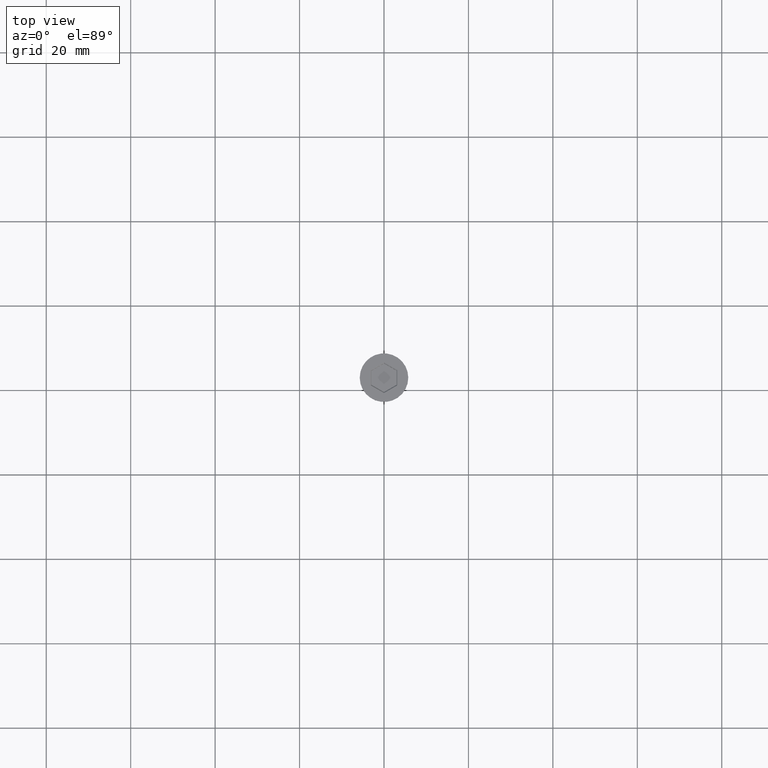
[diagram: clean part render]
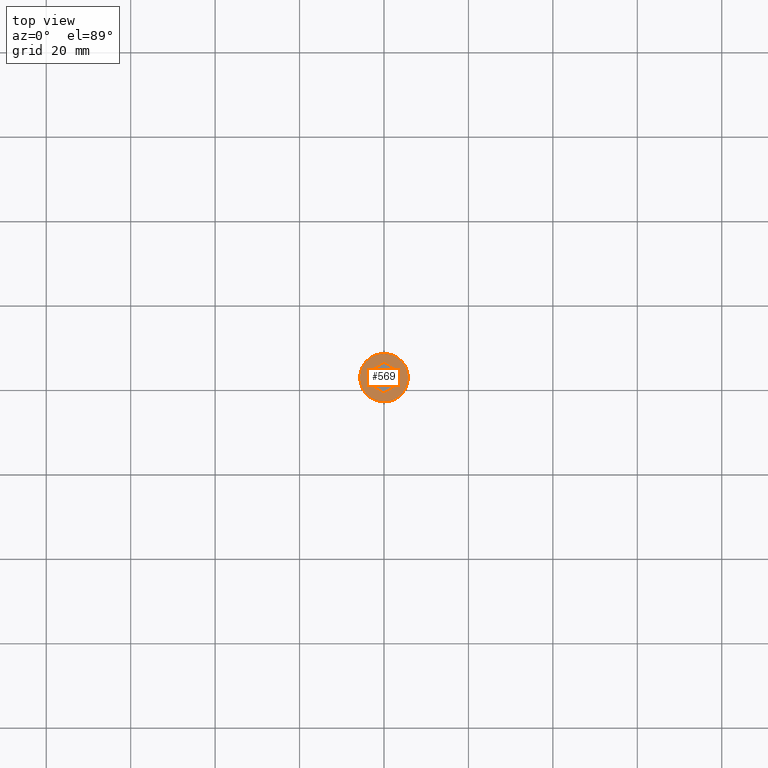
[diagram: same view with one face highlighted and labeled with its STEP entity id]
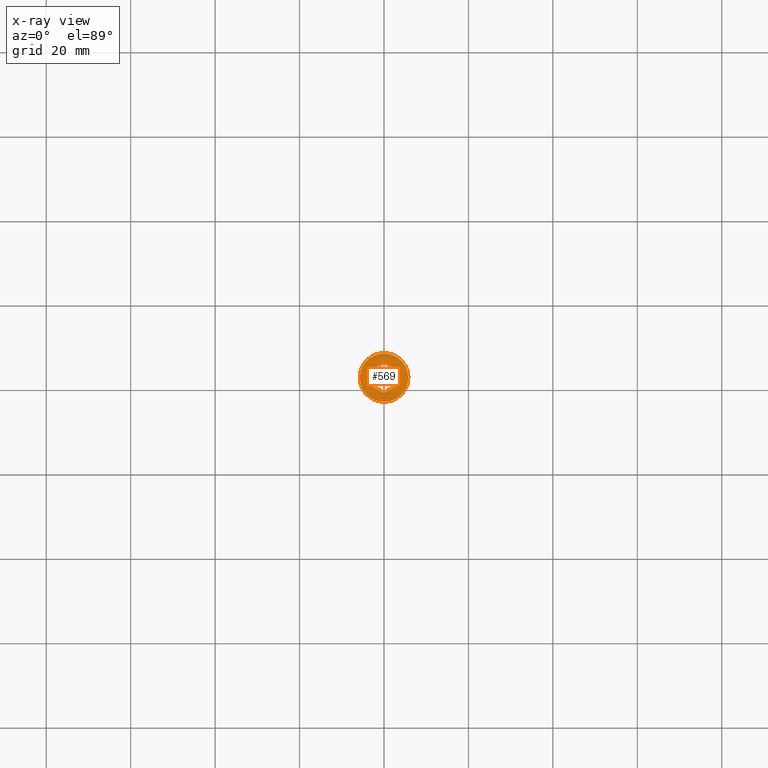
[diagram: x-ray of the same camera — body ghosted, the highlighted face saturated]
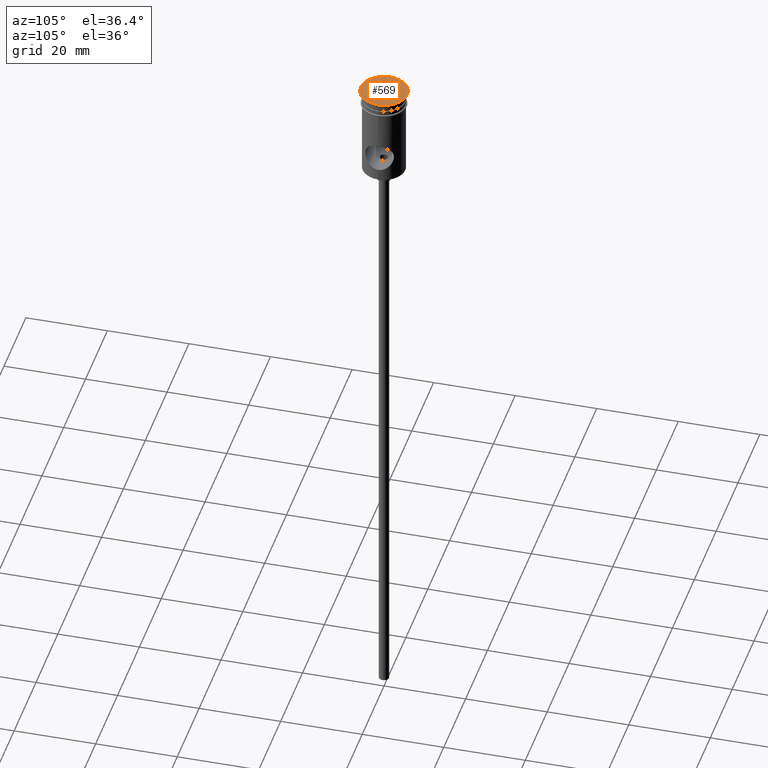
[diagram: same view with one face highlighted and labeled with its STEP entity id]
A machine part, top view. The second image highlights one B-rep face of the part: STEP entity #569.
The next image is the same camera in x-ray: the body ghosted, the highlighted face saturated — about 0% of this face is hidden behind the body in this view.
A second angle (auxiliary view) of the same face is appended — the face is thin or edge-on in the first view.
In plain terms, the highlighted planar face has unit normal (0, -0, 1).
Its self-contained STEP definition (entity closure, byte-faithful):
#3 = PLANE ( 'NONE',  #425 ) ;
#54 = VECTOR ( 'NONE', #727, 1000.000000000000114 ) ;
#78 = CARTESIAN_POINT ( 'NONE',  ( -3.163467028841980443E-16, 3.637306695894617192, 0.000000000000000000 ) ) ;
#112 = LINE ( 'NONE', #654, #376 ) ;
#132 = VERTEX_POINT ( 'NONE', #831 ) ;
#178 = EDGE_CURVE ( 'NONE', #1088, #759, #859, .T. ) ;
#225 = DIRECTION ( 'NONE',  ( 0.000000000000000000, 1.000000000000000000, 0.000000000000000000 ) ) ;
#229 = CARTESIAN_POINT ( 'NONE',  ( 0.000000000000000000, 0.000000000000000000, 0.000000000000000000 ) ) ;
#283 = LINE ( 'NONE', #760, #54 ) ;
#286 = CARTESIAN_POINT ( 'NONE',  ( 3.149999999999978151, -1.703183294109396284, 0.000000000000000000 ) ) ;
#338 = FACE_BOUND ( 'NONE', #1139, .T. ) ;
#341 = EDGE_CURVE ( 'NONE', #1023, #1303, #1173, .T. ) ;
#353 = VECTOR ( 'NONE', #824, 1000.000000000000000 ) ;
#356 = ORIENTED_EDGE ( 'NONE', *, *, #609, .T. ) ;
#376 = VECTOR ( 'NONE', #1336, 1000.000000000000000 ) ;
#383 = DIRECTION ( 'NONE',  ( -0.000000000000000000, -0.000000000000000000, 1.000000000000000000 ) ) ;
#391 = DIRECTION ( 'NONE',  ( 0.8660254037844385966, 0.5000000000000001110, 0.000000000000000000 ) ) ;
#395 = ORIENTED_EDGE ( 'NONE', *, *, #777, .T. ) ;
#411 = VERTEX_POINT ( 'NONE', #78 ) ;
#423 = VECTOR ( 'NONE', #225, 1000.000000000000000 ) ;
#425 = AXIS2_PLACEMENT_3D ( 'NONE', #229, #989, #768 ) ;
#431 = EDGE_LOOP ( 'NONE', ( #1327, #1334 ) ) ;
#492 = CARTESIAN_POINT ( 'NONE',  ( -5.257856505504653693E-16, -3.637306695894617636, 0.000000000000000000 ) ) ;
#569 = ADVANCED_FACE ( 'NONE', ( #338, #1098 ), #3, .T. ) ;
#580 = VERTEX_POINT ( 'NONE', #1011 ) ;
#587 = ORIENTED_EDGE ( 'NONE', *, *, #920, .T. ) ;
#606 = CARTESIAN_POINT ( 'NONE',  ( 5.750000000000000000, 0.000000000000000000, 0.000000000000000000 ) ) ;
#609 = EDGE_CURVE ( 'NONE', #411, #132, #112, .T. ) ;
#641 = VECTOR ( 'NONE', #391, 1000.000000000000114 ) ;
#654 = CARTESIAN_POINT ( 'NONE',  ( 3.049999999999990052, 1.876388374866264863, 0.000000000000000000 ) ) ;
#665 = CARTESIAN_POINT ( 'NONE',  ( 0.000000000000000000, 0.000000000000000000, 0.000000000000000000 ) ) ;
#727 = DIRECTION ( 'NONE',  ( -0.8660254037844385966, 0.5000000000000001110, 0.000000000000000000 ) ) ;
#735 = LINE ( 'NONE', #286, #985 ) ;
#742 = LINE ( 'NONE', #1291, #641 ) ;
#759 = VERTEX_POINT ( 'NONE', #1275 ) ;
#760 = CARTESIAN_POINT ( 'NONE',  ( -3.049999999999989608, -1.876388374866265085, 0.000000000000000000 ) ) ;
#768 = DIRECTION ( 'NONE',  ( 1.000000000000000000, 0.000000000000000000, 0.000000000000000000 ) ) ;
#777 = EDGE_CURVE ( 'NONE', #580, #878, #815, .T. ) ;
#815 = LINE ( 'NONE', #918, #353 ) ;
#824 = DIRECTION ( 'NONE',  ( -0.8660254037844387076, -0.4999999999999998890, 0.000000000000000000 ) ) ;
#828 = AXIS2_PLACEMENT_3D ( 'NONE', #829, #383, #922 ) ;
#829 = CARTESIAN_POINT ( 'NONE',  ( 0.000000000000000000, 0.000000000000000000, 0.000000000000000000 ) ) ;
#831 = CARTESIAN_POINT ( 'NONE',  ( 3.149999999999979039, 1.818653347947308596, 0.000000000000000000 ) ) ;
#850 = EDGE_CURVE ( 'NONE', #878, #1088, #283, .T. ) ;
#859 = LINE ( 'NONE', #892, #423 ) ;
#878 = VERTEX_POINT ( 'NONE', #492 ) ;
#892 = CARTESIAN_POINT ( 'NONE',  ( -3.149999999999978595, 1.703183294109395840, 0.000000000000000000 ) ) ;
#896 = CIRCLE ( 'NONE', #828, 5.750000000000000000 ) ;
#917 = ORIENTED_EDGE ( 'NONE', *, *, #944, .T. ) ;
#918 = CARTESIAN_POINT ( 'NONE',  ( 0.09999999999998870903, -3.579571668975661591, 0.000000000000000000 ) ) ;
#920 = EDGE_CURVE ( 'NONE', #759, #411, #742, .T. ) ;
#922 = DIRECTION ( 'NONE',  ( 1.000000000000000000, 0.000000000000000000, 0.000000000000000000 ) ) ;
#944 = EDGE_CURVE ( 'NONE', #132, #580, #735, .T. ) ;
#985 = VECTOR ( 'NONE', #1170, 1000.000000000000000 ) ;
#989 = DIRECTION ( 'NONE',  ( 0.000000000000000000, -0.000000000000000000, 1.000000000000000000 ) ) ;
#1011 = CARTESIAN_POINT ( 'NONE',  ( 3.149999999999978151, -1.818653347947309262, 0.000000000000000000 ) ) ;
#1023 = VERTEX_POINT ( 'NONE', #1042 ) ;
#1042 = CARTESIAN_POINT ( 'NONE',  ( -5.750000000000000000, 7.041719095097280880E-16, 0.000000000000000000 ) ) ;
#1074 = EDGE_CURVE ( 'NONE', #1303, #1023, #896, .T. ) ;
#1088 = VERTEX_POINT ( 'NONE', #1284 ) ;
#1096 = ORIENTED_EDGE ( 'NONE', *, *, #850, .T. ) ;
#1098 = FACE_OUTER_BOUND ( 'NONE', #431, .T. ) ;
#1109 = DIRECTION ( 'NONE',  ( -0.000000000000000000, -0.000000000000000000, 1.000000000000000000 ) ) ;
#1139 = EDGE_LOOP ( 'NONE', ( #1096, #1211, #587, #356, #917, #395 ) ) ;
#1170 = DIRECTION ( 'NONE',  ( -2.546295930062981593E-16, -1.000000000000000000, 0.000000000000000000 ) ) ;
#1173 = CIRCLE ( 'NONE', #1397, 5.750000000000000000 ) ;
#1211 = ORIENTED_EDGE ( 'NONE', *, *, #178, .T. ) ;
#1268 = DIRECTION ( 'NONE',  ( 1.000000000000000000, 0.000000000000000000, 0.000000000000000000 ) ) ;
#1275 = CARTESIAN_POINT ( 'NONE',  ( -3.149999999999978595, 1.818653347947308374, 0.000000000000000000 ) ) ;
#1284 = CARTESIAN_POINT ( 'NONE',  ( -3.149999999999978595, -1.818653347947308818, 0.000000000000000000 ) ) ;
#1291 = CARTESIAN_POINT ( 'NONE',  ( -0.09999999999998937517, 3.579571668975661147, 0.000000000000000000 ) ) ;
#1303 = VERTEX_POINT ( 'NONE', #606 ) ;
#1327 = ORIENTED_EDGE ( 'NONE', *, *, #1074, .T. ) ;
#1334 = ORIENTED_EDGE ( 'NONE', *, *, #341, .T. ) ;
#1336 = DIRECTION ( 'NONE',  ( 0.8660254037844387076, -0.4999999999999998890, 0.000000000000000000 ) ) ;
#1397 = AXIS2_PLACEMENT_3D ( 'NONE', #665, #1109, #1268 ) ;